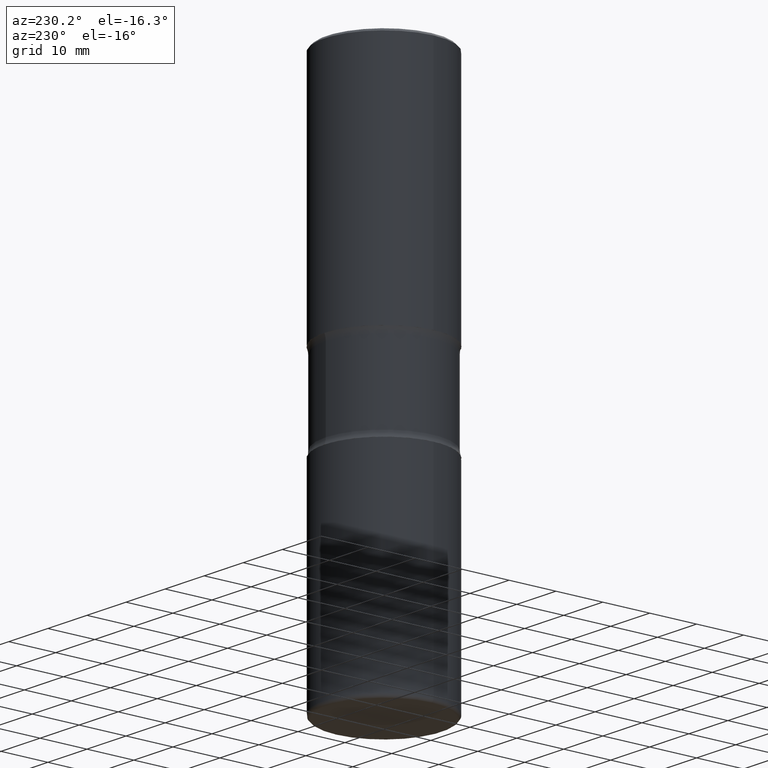
[diagram: clean part render]
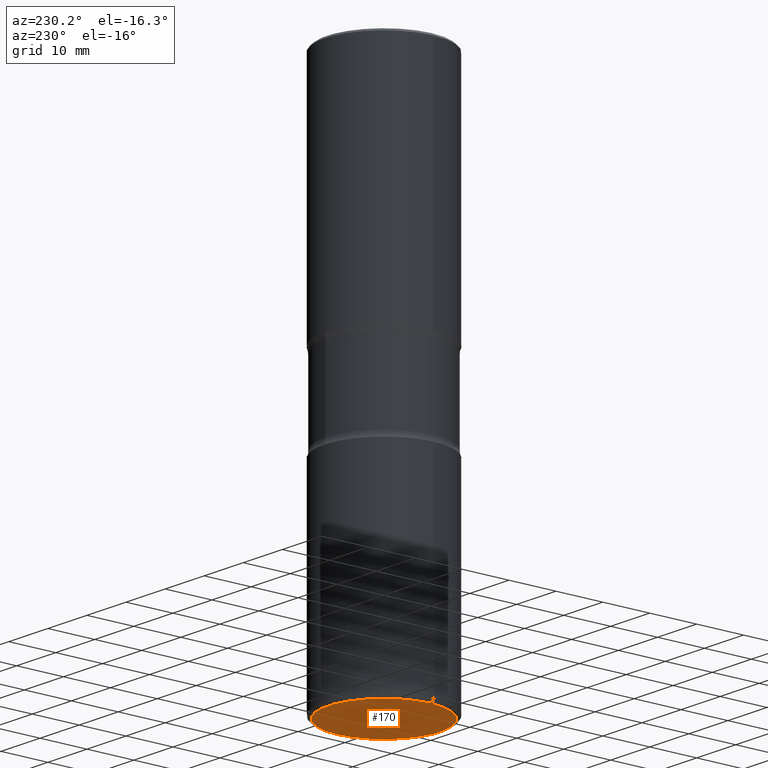
[diagram: same view with one face highlighted and labeled with its STEP entity id]
A machine part, auxiliary view. The second image highlights one B-rep face of the part: STEP entity #170.
In plain terms, the highlighted planar face has unit normal (0, -0, -1).
Its self-contained STEP definition (entity closure, byte-faithful):
#2 = CARTESIAN_POINT ( 'NONE',  ( 1.100460962783311469E-28, -1.571166602479415690E-14, -4.500000000000000000 ) ) ;
#26 = DIRECTION ( 'NONE',  ( -1.000000000000000000, 6.982962677686265922E-15, -4.876176775795935793E-29 ) ) ;
#149 = AXIS2_PLACEMENT_3D ( 'NONE', #416, #278, #26 ) ;
#160 = DIRECTION ( 'NONE',  ( 1.000000000000000000, -6.982962677686268288E-15, 0.000000000000000000 ) ) ;
#165 = CIRCLE ( 'NONE', #240, 0.4700000000000004730 ) ;
#170 = ADVANCED_FACE ( 'NONE', ( #451 ), #415, .T. ) ;
#240 = AXIS2_PLACEMENT_3D ( 'NONE', #2, #307, #160 ) ;
#243 = VERTEX_POINT ( 'NONE', #461 ) ;
#258 = CARTESIAN_POINT ( 'NONE',  ( -0.4700000000000004730, -1.221316153627502204E-14, -4.500000000000000000 ) ) ;
#273 = EDGE_LOOP ( 'NONE', ( #295, #523 ) ) ;
#278 = DIRECTION ( 'NONE',  ( 2.438088387897960049E-29, -3.491481338843145188E-15, -1.000000000000000000 ) ) ;
#286 = EDGE_CURVE ( 'NONE', #243, #299, #165, .T. ) ;
#295 = ORIENTED_EDGE ( 'NONE', *, *, #286, .F. ) ;
#298 = CIRCLE ( 'NONE', #432, 0.4700000000000004730 ) ;
#299 = VERTEX_POINT ( 'NONE', #258 ) ;
#307 = DIRECTION ( 'NONE',  ( -2.445468806185136597E-29, 3.491481338843145583E-15, 1.000000000000000000 ) ) ;
#356 = CARTESIAN_POINT ( 'NONE',  ( 1.100460962783311469E-28, -1.571166602479415690E-14, -4.500000000000000000 ) ) ;
#415 = PLANE ( 'NONE',  #149 ) ;
#416 = CARTESIAN_POINT ( 'NONE',  ( 1.465753586672304538E-28, -1.048046773905408408E-14, -4.500000000000000888 ) ) ;
#432 = AXIS2_PLACEMENT_3D ( 'NONE', #356, #497, #533 ) ;
#451 = FACE_OUTER_BOUND ( 'NONE', #273, .T. ) ;
#461 = CARTESIAN_POINT ( 'NONE',  ( 0.4700000000000004730, -1.899365848330670351E-14, -4.500000000000000000 ) ) ;
#486 = EDGE_CURVE ( 'NONE', #299, #243, #298, .T. ) ;
#497 = DIRECTION ( 'NONE',  ( -2.445468806185136597E-29, 3.491481338843145583E-15, 1.000000000000000000 ) ) ;
#523 = ORIENTED_EDGE ( 'NONE', *, *, #486, .F. ) ;
#533 = DIRECTION ( 'NONE',  ( 1.000000000000000000, -6.982962677686268288E-15, 0.000000000000000000 ) ) ;